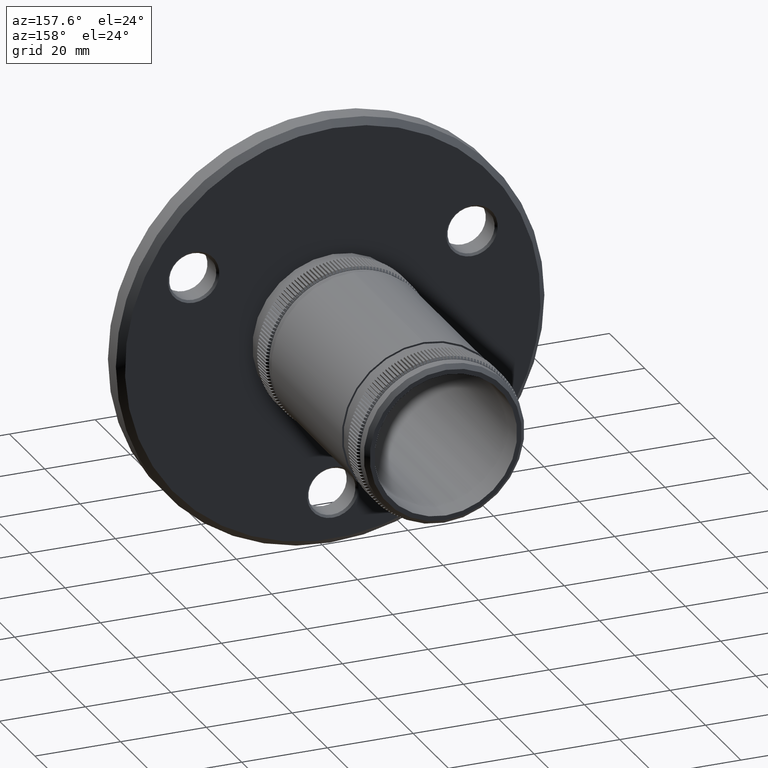
[diagram: clean part render]
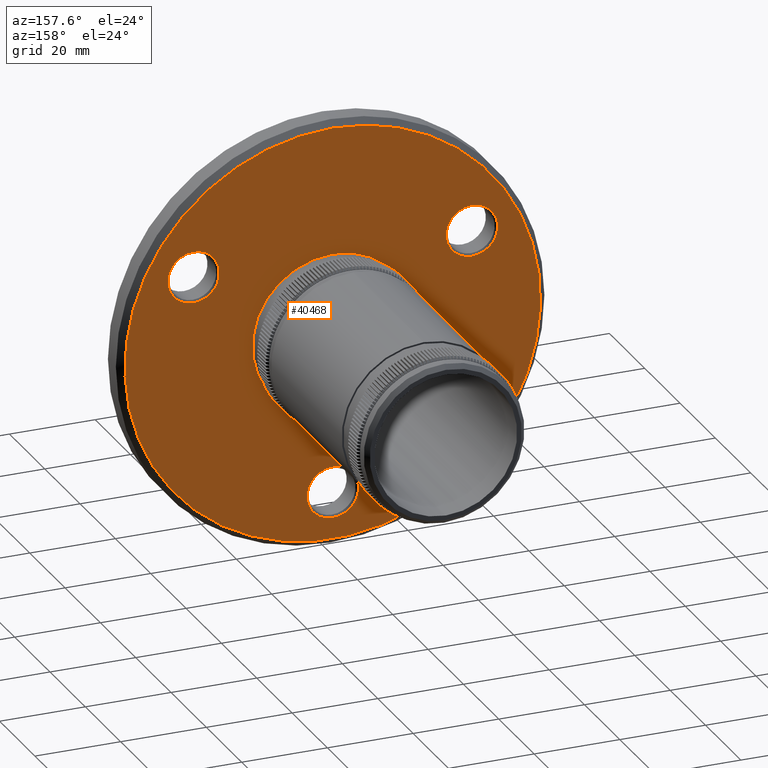
[diagram: same view with one face highlighted and labeled with its STEP entity id]
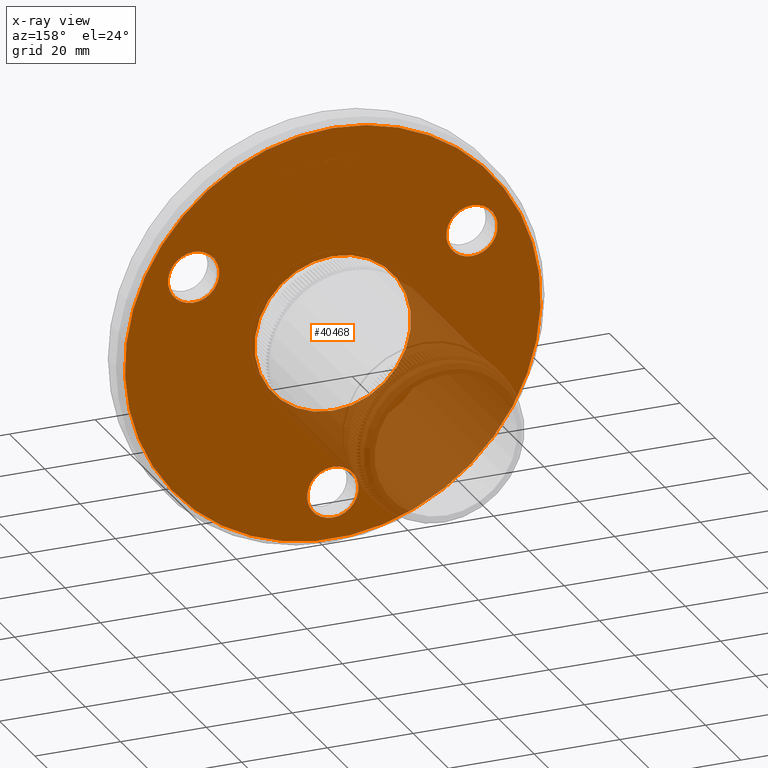
[diagram: x-ray of the same camera — body ghosted, the highlighted face saturated]
A machine part, auxiliary view. The second image highlights one B-rep face of the part: STEP entity #40468.
The next image is the same camera in x-ray: the body ghosted, the highlighted face saturated — about 21% of this face is hidden behind the body in this view.
In plain terms, the highlighted planar face has unit normal (0, 1, 0).
Its self-contained STEP definition (entity closure, byte-faithful):
#5522 = EDGE_CURVE ( 'NONE', #10822, #10822, #24194, .T. ) ;
#6090 = CARTESIAN_POINT ( 'NONE',  ( 32.47595264191645000, 6.000000000000000000, 18.74999999999998900 ) ) ;
#7777 = CIRCLE ( 'NONE', #74536, 6.000000000000005300 ) ;
#8359 = DIRECTION ( 'NONE',  ( -0.0000000000000000000, -1.000000000000000000, -0.0000000000000000000 ) ) ;
#9047 = ORIENTED_EDGE ( 'NONE', *, *, #12270, .T. ) ;
#9603 = CIRCLE ( 'NONE', #45030, 6.000000000000005300 ) ;
#10002 = EDGE_LOOP ( 'NONE', ( #9047 ) ) ;
#10822 = VERTEX_POINT ( 'NONE', #37815 ) ;
#11144 = EDGE_CURVE ( 'NONE', #21724, #21724, #13407, .T. ) ;
#12270 = EDGE_CURVE ( 'NONE', #79120, #79120, #7777, .T. ) ;
#12484 = FACE_BOUND ( 'NONE', #31414, .T. ) ;
#12541 = EDGE_LOOP ( 'NONE', ( #30597 ) ) ;
#13407 = CIRCLE ( 'NONE', #51417, 18.25000000000000000 ) ;
#21441 = EDGE_LOOP ( 'NONE', ( #51607 ) ) ;
#21602 = DIRECTION ( 'NONE',  ( 0.0000000000000000000, 0.0000000000000000000, 1.000000000000000000 ) ) ;
#21724 = VERTEX_POINT ( 'NONE', #31927 ) ;
#24194 = CIRCLE ( 'NONE', #81146, 48.50000000000000700 ) ;
#27251 = DIRECTION ( 'NONE',  ( -0.0000000000000000000, -1.000000000000000000, -0.0000000000000000000 ) ) ;
#29440 = ORIENTED_EDGE ( 'NONE', *, *, #88673, .T. ) ;
#30597 = ORIENTED_EDGE ( 'NONE', *, *, #5522, .T. ) ;
#31414 = EDGE_LOOP ( 'NONE', ( #59931 ) ) ;
#31927 = CARTESIAN_POINT ( 'NONE',  ( 0.0000000000000000000, 6.000000000000000000, 18.25000000000000000 ) ) ;
#35315 = CARTESIAN_POINT ( 'NONE',  ( 0.0000000000000000000, 6.000000000000000000, 0.0000000000000000000 ) ) ;
#37027 = AXIS2_PLACEMENT_3D ( 'NONE', #57943, #8359, #21602 ) ;
#37815 = CARTESIAN_POINT ( 'NONE',  ( 0.0000000000000000000, 6.000000000000000000, 48.50000000000000700 ) ) ;
#40468 = ADVANCED_FACE ( 'NONE', ( #54377, #52159, #74215, #73181, #12484 ), #66787, .T. ) ;
#41014 = CARTESIAN_POINT ( 'NONE',  ( 0.0000000000000000000, 6.000000000000000000, -37.50000000000000000 ) ) ;
#41430 = DIRECTION ( 'NONE',  ( 0.0000000000000000000, 0.0000000000000000000, 1.000000000000000000 ) ) ;
#42640 = DIRECTION ( 'NONE',  ( 0.0000000000000000000, 0.0000000000000000000, 1.000000000000000000 ) ) ;
#45030 = AXIS2_PLACEMENT_3D ( 'NONE', #41014, #62576, #48702 ) ;
#45150 = CARTESIAN_POINT ( 'NONE',  ( 32.47595264191645000, 6.000000000000000000, 24.74999999999999300 ) ) ;
#48702 = DIRECTION ( 'NONE',  ( 0.0000000000000000000, 0.0000000000000000000, 1.000000000000000000 ) ) ;
#49433 = DIRECTION ( 'NONE',  ( 0.0000000000000000000, 1.000000000000000000, 0.0000000000000000000 ) ) ;
#49860 = EDGE_LOOP ( 'NONE', ( #29440 ) ) ;
#50670 = DIRECTION ( 'NONE',  ( 0.0000000000000000000, 1.000000000000000000, 0.0000000000000000000 ) ) ;
#51417 = AXIS2_PLACEMENT_3D ( 'NONE', #71085, #50670, #58068 ) ;
#51421 = EDGE_CURVE ( 'NONE', #77996, #77996, #64910, .T. ) ;
#51607 = ORIENTED_EDGE ( 'NONE', *, *, #51421, .T. ) ;
#52159 = FACE_BOUND ( 'NONE', #49860, .T. ) ;
#52913 = CARTESIAN_POINT ( 'NONE',  ( 0.0000000000000000000, 6.000000000000000000, 0.0000000000000000000 ) ) ;
#54377 = FACE_BOUND ( 'NONE', #10002, .T. ) ;
#57943 = CARTESIAN_POINT ( 'NONE',  ( -32.47595264191643600, 6.000000000000000000, 18.75000000000001800 ) ) ;
#58061 = AXIS2_PLACEMENT_3D ( 'NONE', #52913, #73912, #80659 ) ;
#58068 = DIRECTION ( 'NONE',  ( 0.0000000000000000000, 0.0000000000000000000, 1.000000000000000000 ) ) ;
#59931 = ORIENTED_EDGE ( 'NONE', *, *, #11144, .F. ) ;
#59971 = CARTESIAN_POINT ( 'NONE',  ( 0.0000000000000000000, 6.000000000000000000, -31.49999999999999300 ) ) ;
#62576 = DIRECTION ( 'NONE',  ( -0.0000000000000000000, -1.000000000000000000, -0.0000000000000000000 ) ) ;
#64910 = CIRCLE ( 'NONE', #37027, 6.000000000000005300 ) ;
#66787 = PLANE ( 'NONE',  #58061 ) ;
#68100 = VERTEX_POINT ( 'NONE', #59971 ) ;
#71085 = CARTESIAN_POINT ( 'NONE',  ( 0.0000000000000000000, 6.000000000000000000, 0.0000000000000000000 ) ) ;
#73181 = FACE_OUTER_BOUND ( 'NONE', #12541, .T. ) ;
#73912 = DIRECTION ( 'NONE',  ( 0.0000000000000000000, 1.000000000000000000, 0.0000000000000000000 ) ) ;
#74215 = FACE_BOUND ( 'NONE', #21441, .T. ) ;
#74536 = AXIS2_PLACEMENT_3D ( 'NONE', #6090, #27251, #41430 ) ;
#77996 = VERTEX_POINT ( 'NONE', #81236 ) ;
#79120 = VERTEX_POINT ( 'NONE', #45150 ) ;
#80659 = DIRECTION ( 'NONE',  ( 0.0000000000000000000, -0.0000000000000000000, 1.000000000000000000 ) ) ;
#81146 = AXIS2_PLACEMENT_3D ( 'NONE', #35315, #49433, #42640 ) ;
#81236 = CARTESIAN_POINT ( 'NONE',  ( -32.47595264191643600, 6.000000000000000000, 24.75000000000002100 ) ) ;
#88673 = EDGE_CURVE ( 'NONE', #68100, #68100, #9603, .T. ) ;